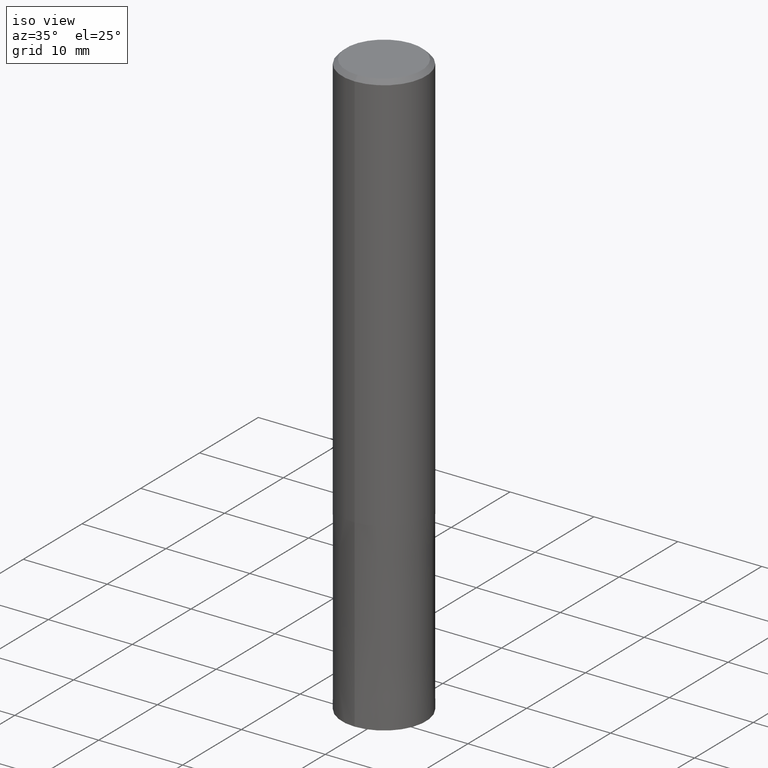
[diagram: clean part render]
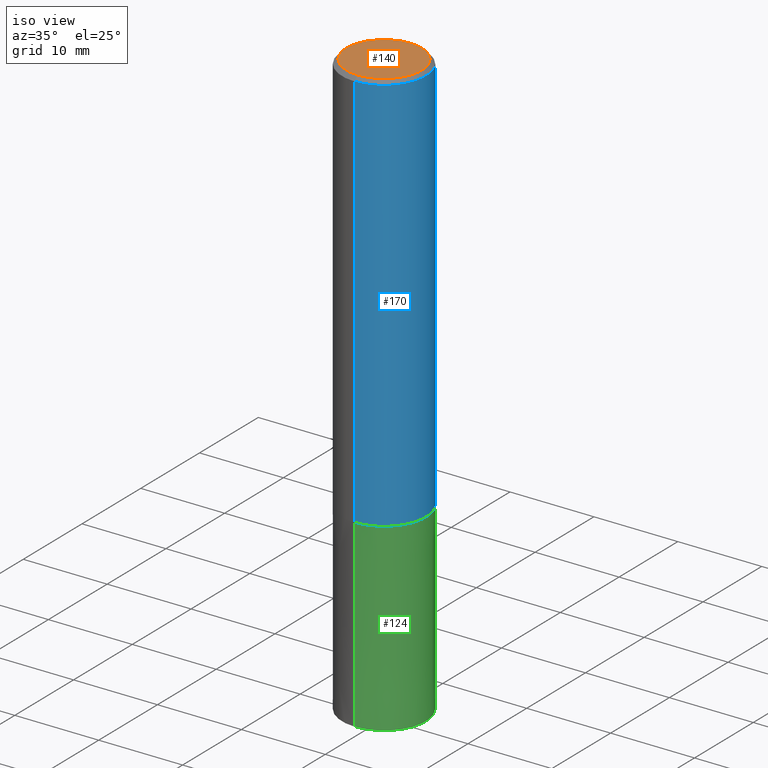
[diagram: same view with three faces highlighted in distinct colors, each labeled with its STEP entity id]
A machine part, iso view with three faces highlighted in distinct colors.
Their STEP definitions:

[orange] entity #140 — the highlighted planar face has unit normal (-0, 0, 1).
#134=EDGE_CURVE('',#208,#186,#286,.T.);
#140=ADVANCED_FACE('',(#292),#293,.T.);
#186=VERTEX_POINT('',#348);
#194=EDGE_CURVE('',#186,#208,#356,.T.);
#208=VERTEX_POINT('',#370);
#286=CIRCLE('',#453,4.5);
#292=FACE_OUTER_BOUND('',#462,.T.);
#293=PLANE('',#463);
#348=CARTESIAN_POINT('',(0.0,4.5,0.0));
#356=CIRCLE('',#540,4.5);
#370=CARTESIAN_POINT('',(5.5107285922007E-016,-4.5,0.0));
#453=AXIS2_PLACEMENT_3D('',#639,#640,#641);
#462=EDGE_LOOP('',(#647,#648));
#463=AXIS2_PLACEMENT_3D('',#649,#650,#651);
#540=AXIS2_PLACEMENT_3D('',#731,#732,#733);
#639=CARTESIAN_POINT('',(0.0,0.0,0.0));
#640=DIRECTION('',(0.0,0.0,-1.0));
#641=DIRECTION('',(0.0,1.0,0.0));
#647=ORIENTED_EDGE('',*,*,#194,.F.);
#648=ORIENTED_EDGE('',*,*,#134,.F.);
#649=CARTESIAN_POINT('',(0.0,2.25,0.0));
#650=DIRECTION('',(-0.0,0.0,1.0));
#651=DIRECTION('',(0.0,-1.0,0.0));
#731=CARTESIAN_POINT('',(0.0,0.0,0.0));
#732=DIRECTION('',(0.0,0.0,-1.0));
#733=DIRECTION('',(0.0,1.0,0.0));

[blue] entity #170 — the highlighted cylindrical surface (partial cylindrical patch) has radius 5 mm, axis along (-0, -0, 1).
#116=EDGE_CURVE('',#148,#146,#265,.T.);
#138=EDGE_CURVE('',#146,#172,#290,.T.);
#146=VERTEX_POINT('',#300);
#148=VERTEX_POINT('',#302);
#166=VERTEX_POINT('',#325);
#168=EDGE_CURVE('',#166,#172,#327,.T.);
#170=ADVANCED_FACE('',(#329),#330,.T.);
#172=VERTEX_POINT('',#332);
#182=EDGE_CURVE('',#166,#148,#344,.T.);
#265=CIRCLE('',#426,5.0);
#290=LINE('',#459,#460);
#300=CARTESIAN_POINT('',(6.12303176911189E-016,-5.0,-48.0));
#302=CARTESIAN_POINT('',(0.0,5.0,-48.0));
#325=CARTESIAN_POINT('',(0.0,5.0,-0.5));
#327=CIRCLE('',#505,5.0);
#329=FACE_OUTER_BOUND('',#507,.T.);
#330=CYLINDRICAL_SURFACE('',#508,5.0);
#332=CARTESIAN_POINT('',(6.12303176911189E-016,-5.0,-0.5));
#344=LINE('',#524,#525);
#426=AXIS2_PLACEMENT_3D('',#607,#608,#609);
#459=CARTESIAN_POINT('',(6.12303176911189E-016,-5.0,-24.25));
#460=VECTOR('',#645,1.0);
#505=AXIS2_PLACEMENT_3D('',#695,#696,#697);
#507=EDGE_LOOP('',(#699,#700,#701,#702));
#508=AXIS2_PLACEMENT_3D('',#703,#704,#705);
#524=CARTESIAN_POINT('',(-6.12303176911189E-016,5.0,-24.25));
#525=VECTOR('',#725,1.0);
#607=CARTESIAN_POINT('',(0.0,0.0,-48.0));
#608=DIRECTION('',(0.0,0.0,-1.0));
#609=DIRECTION('',(0.0,1.0,0.0));
#645=DIRECTION('',(-0.0,-0.0,1.0));
#695=CARTESIAN_POINT('',(0.0,0.0,-0.5));
#696=DIRECTION('',(0.0,0.0,-1.0));
#697=DIRECTION('',(0.0,1.0,0.0));
#699=ORIENTED_EDGE('',*,*,#182,.F.);
#700=ORIENTED_EDGE('',*,*,#168,.T.);
#701=ORIENTED_EDGE('',*,*,#138,.F.);
#702=ORIENTED_EDGE('',*,*,#116,.F.);
#703=CARTESIAN_POINT('',(0.0,0.0,-24.25));
#704=DIRECTION('',(-0.0,-0.0,1.0));
#705=DIRECTION('',(0.0,1.0,0.0));
#725=DIRECTION('',(0.0,0.0,-1.0));

[green] entity #124 — the highlighted conical surface has half-angle 0 deg.
#114=EDGE_CURVE('',#174,#210,#263,.T.);
#118=EDGE_CURVE('',#174,#206,#267,.T.);
#124=ADVANCED_FACE('',(#273),#274,.T.);
#126=EDGE_CURVE('',#160,#206,#276,.T.);
#160=VERTEX_POINT('',#319);
#164=EDGE_CURVE('',#210,#160,#323,.T.);
#174=VERTEX_POINT('',#334);
#206=VERTEX_POINT('',#368);
#210=VERTEX_POINT('',#372);
#263=LINE('',#422,#423);
#267=CIRCLE('',#429,4.9999);
#273=FACE_OUTER_BOUND('',#437,.T.);
#274=CONICAL_SURFACE('',#438,4.99995,4.54545454541265E-006);
#276=LINE('',#441,#442);
#319=CARTESIAN_POINT('',(6.12303176911189E-016,-5.0,-70.0));
#323=CIRCLE('',#500,5.0);
#334=CARTESIAN_POINT('',(0.0,4.9999,-48.0));
#368=CARTESIAN_POINT('',(6.1229093084765E-016,-4.9999,-48.0));
#372=CARTESIAN_POINT('',(0.0,5.0,-70.0));
#422=CARTESIAN_POINT('',(-6.12297053879419E-016,4.99995,-59.0));
#423=VECTOR('',#606,1.0);
#429=AXIS2_PLACEMENT_3D('',#610,#611,#612);
#437=EDGE_LOOP('',(#615,#616,#617,#618));
#438=AXIS2_PLACEMENT_3D('',#619,#620,#621);
#441=CARTESIAN_POINT('',(6.12297053879419E-016,-4.99995,-59.0));
#442=VECTOR('',#622,1.0);
#500=AXIS2_PLACEMENT_3D('',#692,#693,#694);
#606=DIRECTION('',(-5.56639251730397E-022,4.545454545397E-006,-0.999999999989669));
#610=CARTESIAN_POINT('',(0.0,0.0,-48.0));
#611=DIRECTION('',(0.0,0.0,-1.0));
#612=DIRECTION('',(0.0,1.0,0.0));
#615=ORIENTED_EDGE('',*,*,#114,.F.);
#616=ORIENTED_EDGE('',*,*,#118,.T.);
#617=ORIENTED_EDGE('',*,*,#126,.F.);
#618=ORIENTED_EDGE('',*,*,#164,.F.);
#619=CARTESIAN_POINT('',(0.0,0.0,-59.0));
#620=DIRECTION('',(0.0,-0.0,-1.0));
#621=DIRECTION('',(0.0,1.0,0.0));
#622=DIRECTION('',(-5.56639251730396E-022,4.545454545397E-006,0.999999999989669));
#692=CARTESIAN_POINT('',(0.0,0.0,-70.0));
#693=DIRECTION('',(0.0,0.0,-1.0));
#694=DIRECTION('',(0.0,1.0,0.0));